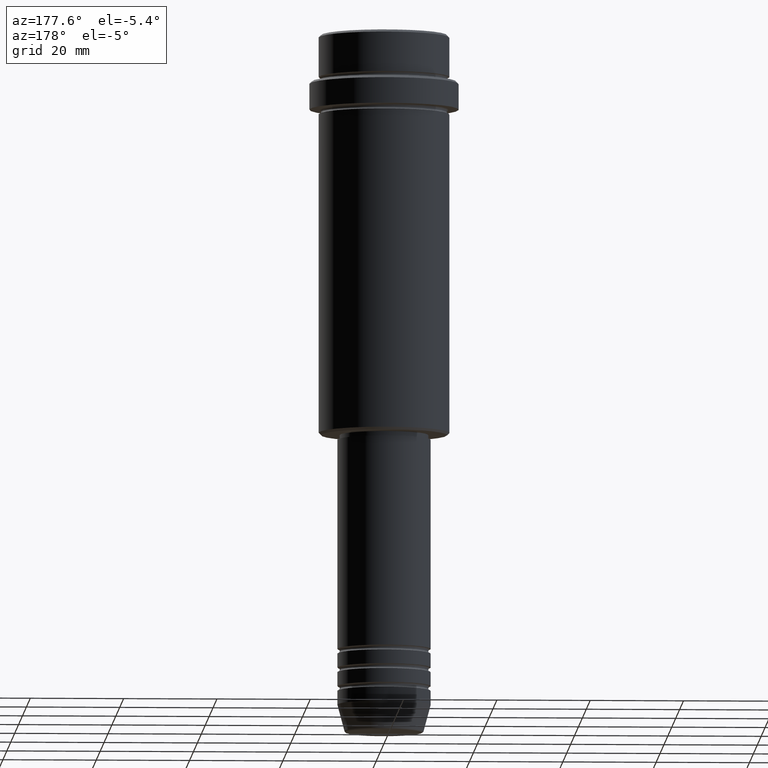
[diagram: clean part render]
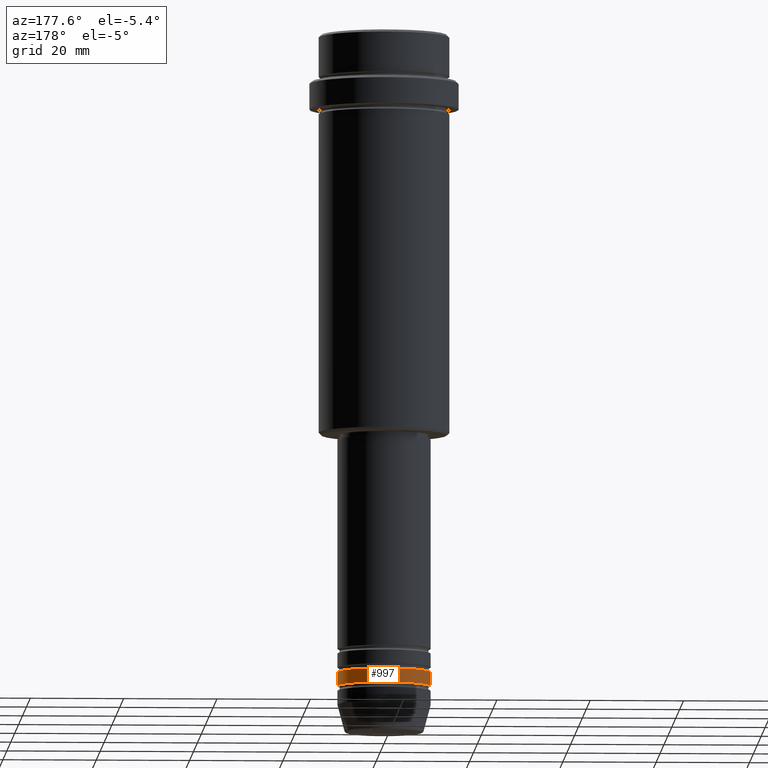
[diagram: same view with one face highlighted and labeled with its STEP entity id]
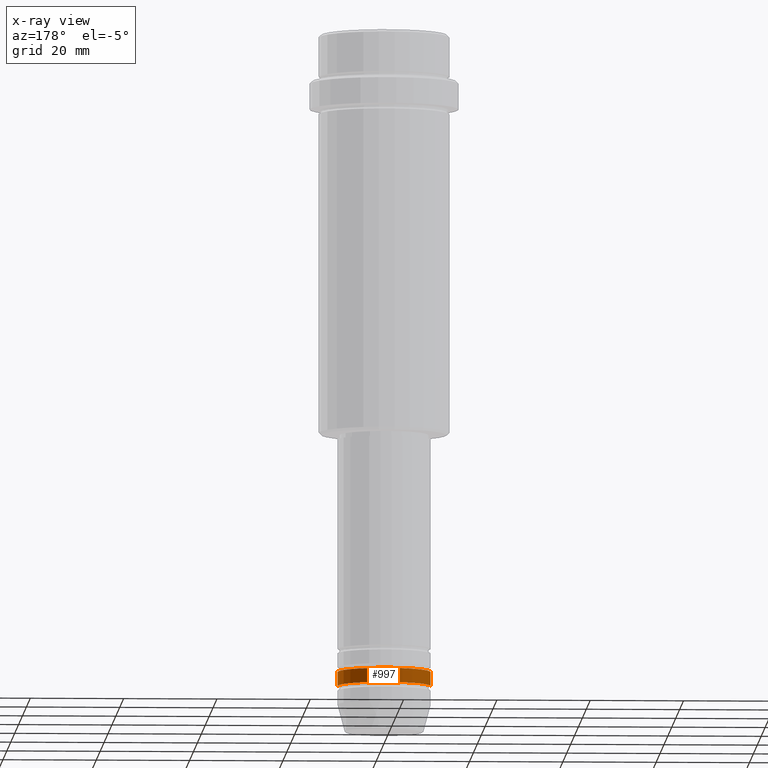
[diagram: x-ray of the same camera — body ghosted, the highlighted face saturated]
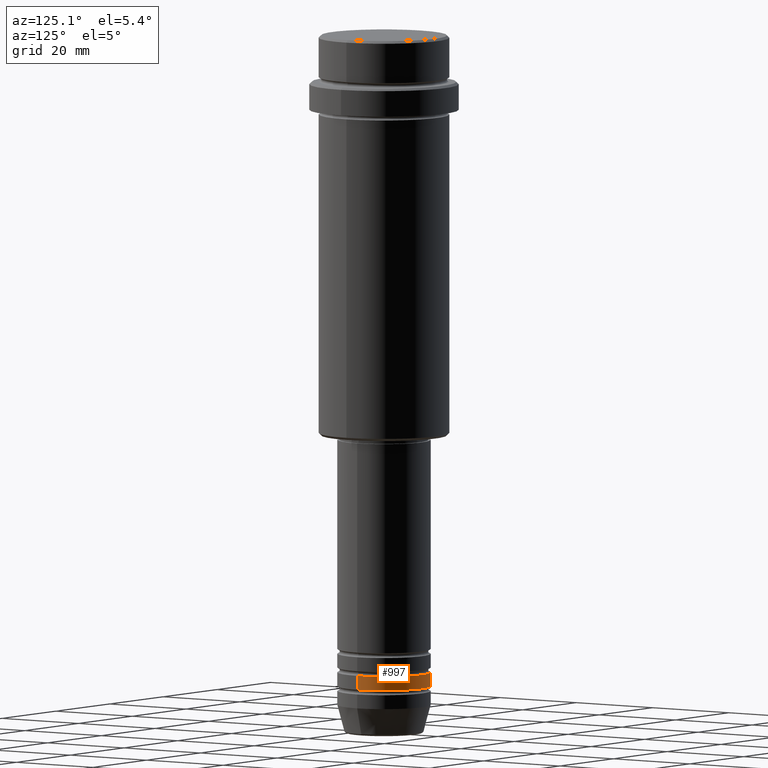
[diagram: same view with one face highlighted and labeled with its STEP entity id]
A machine part, auxiliary view. The second image highlights one B-rep face of the part: STEP entity #997.
The next image is the same camera in x-ray: the body ghosted, the highlighted face saturated — about 0% of this face is hidden behind the body in this view.
A second angle (auxiliary view) of the same face is appended — the face is thin or edge-on in the first view.
In plain terms, the highlighted cylindrical surface (partial cylindrical patch) has radius 10 mm, axis along (-0, -0, 1).
Its self-contained STEP definition (entity closure, byte-faithful):
#20 = DIRECTION ( 'NONE',  ( -0.000000000000000000, -0.000000000000000000, 1.000000000000000000 ) ) ;
#64 = CARTESIAN_POINT ( 'NONE',  ( 10.00000000000000000, 0.000000000000000000, -136.9999999999998863 ) ) ;
#95 = CIRCLE ( 'NONE', #901, 10.00000000000000000 ) ;
#103 = CARTESIAN_POINT ( 'NONE',  ( 0.000000000000000000, 0.000000000000000000, -136.9999999999998863 ) ) ;
#117 = CARTESIAN_POINT ( 'NONE',  ( -10.00000000000000000, 1.224646799147353256E-15, 0.000000000000000000 ) ) ;
#120 = DIRECTION ( 'NONE',  ( -0.000000000000000000, -0.000000000000000000, 1.000000000000000000 ) ) ;
#177 = VERTEX_POINT ( 'NONE', #308 ) ;
#229 = DIRECTION ( 'NONE',  ( -0.000000000000000000, -0.000000000000000000, 1.000000000000000000 ) ) ;
#300 = EDGE_CURVE ( 'NONE', #983, #177, #562, .T. ) ;
#305 = DIRECTION ( 'NONE',  ( -0.000000000000000000, -0.000000000000000000, 1.000000000000000000 ) ) ;
#308 = CARTESIAN_POINT ( 'NONE',  ( -10.00000000000000000, 1.224646799147353256E-15, -136.9999999999998863 ) ) ;
#320 = ORIENTED_EDGE ( 'NONE', *, *, #518, .F. ) ;
#375 = VECTOR ( 'NONE', #229, 1000.000000000000000 ) ;
#387 = ORIENTED_EDGE ( 'NONE', *, *, #1317, .T. ) ;
#404 = CARTESIAN_POINT ( 'NONE',  ( 0.000000000000000000, 0.000000000000000000, -139.9999999999999147 ) ) ;
#413 = VERTEX_POINT ( 'NONE', #64 ) ;
#432 = CARTESIAN_POINT ( 'NONE',  ( 10.00000000000000000, 0.000000000000000000, 0.000000000000000000 ) ) ;
#467 = ORIENTED_EDGE ( 'NONE', *, *, #300, .T. ) ;
#473 = CARTESIAN_POINT ( 'NONE',  ( 0.000000000000000000, 0.000000000000000000, 0.000000000000000000 ) ) ;
#500 = DIRECTION ( 'NONE',  ( 1.000000000000000000, 0.000000000000000000, 0.000000000000000000 ) ) ;
#518 = EDGE_CURVE ( 'NONE', #413, #177, #1090, .T. ) ;
#562 = LINE ( 'NONE', #117, #1225 ) ;
#568 = CARTESIAN_POINT ( 'NONE',  ( 10.00000000000000000, 0.000000000000000000, -139.9999999999999147 ) ) ;
#571 = CARTESIAN_POINT ( 'NONE',  ( -10.00000000000000000, 1.224646799147353256E-15, -139.9999999999999147 ) ) ;
#635 = EDGE_CURVE ( 'NONE', #1073, #413, #1413, .T. ) ;
#662 = DIRECTION ( 'NONE',  ( 1.000000000000000000, 0.000000000000000000, 0.000000000000000000 ) ) ;
#708 = ORIENTED_EDGE ( 'NONE', *, *, #635, .F. ) ;
#741 = DIRECTION ( 'NONE',  ( -0.000000000000000000, -0.000000000000000000, 1.000000000000000000 ) ) ;
#765 = FACE_OUTER_BOUND ( 'NONE', #1403, .T. ) ;
#802 = AXIS2_PLACEMENT_3D ( 'NONE', #103, #741, #1111 ) ;
#901 = AXIS2_PLACEMENT_3D ( 'NONE', #404, #305, #500 ) ;
#983 = VERTEX_POINT ( 'NONE', #571 ) ;
#997 = ADVANCED_FACE ( 'NONE', ( #765 ), #1014, .T. ) ;
#1014 = CYLINDRICAL_SURFACE ( 'NONE', #1228, 10.00000000000000000 ) ;
#1073 = VERTEX_POINT ( 'NONE', #568 ) ;
#1090 = CIRCLE ( 'NONE', #802, 10.00000000000000000 ) ;
#1111 = DIRECTION ( 'NONE',  ( 1.000000000000000000, 0.000000000000000000, 0.000000000000000000 ) ) ;
#1225 = VECTOR ( 'NONE', #20, 1000.000000000000000 ) ;
#1228 = AXIS2_PLACEMENT_3D ( 'NONE', #473, #120, #662 ) ;
#1317 = EDGE_CURVE ( 'NONE', #1073, #983, #95, .T. ) ;
#1403 = EDGE_LOOP ( 'NONE', ( #387, #467, #320, #708 ) ) ;
#1413 = LINE ( 'NONE', #432, #375 ) ;